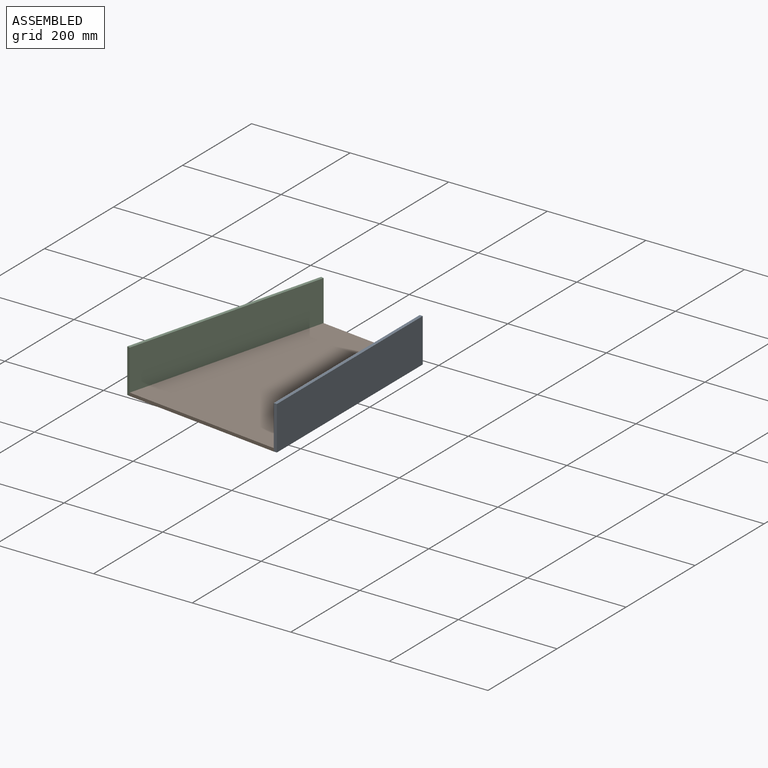
[diagram: assembled view]
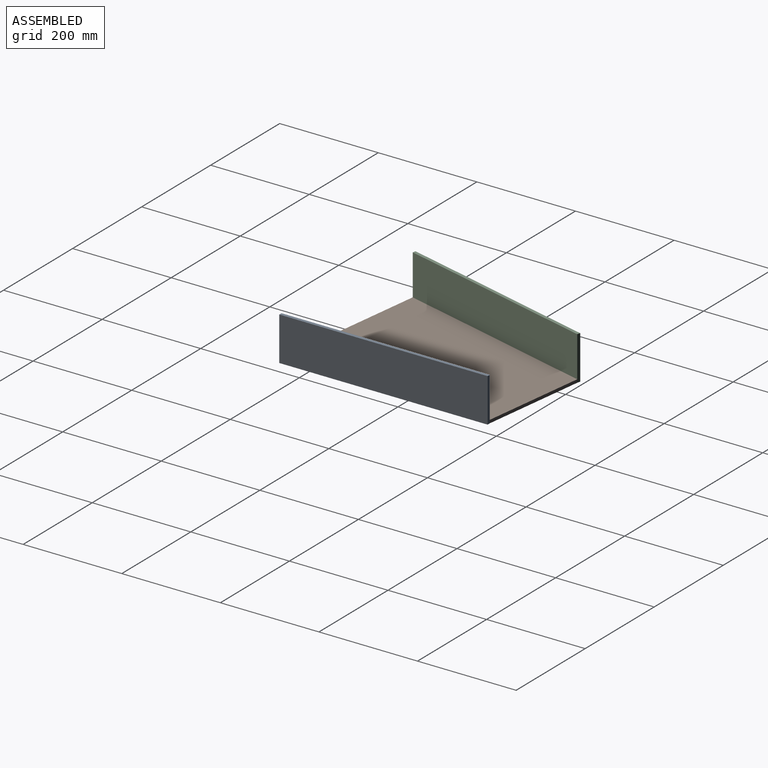
[diagram: assembled view, second angle]
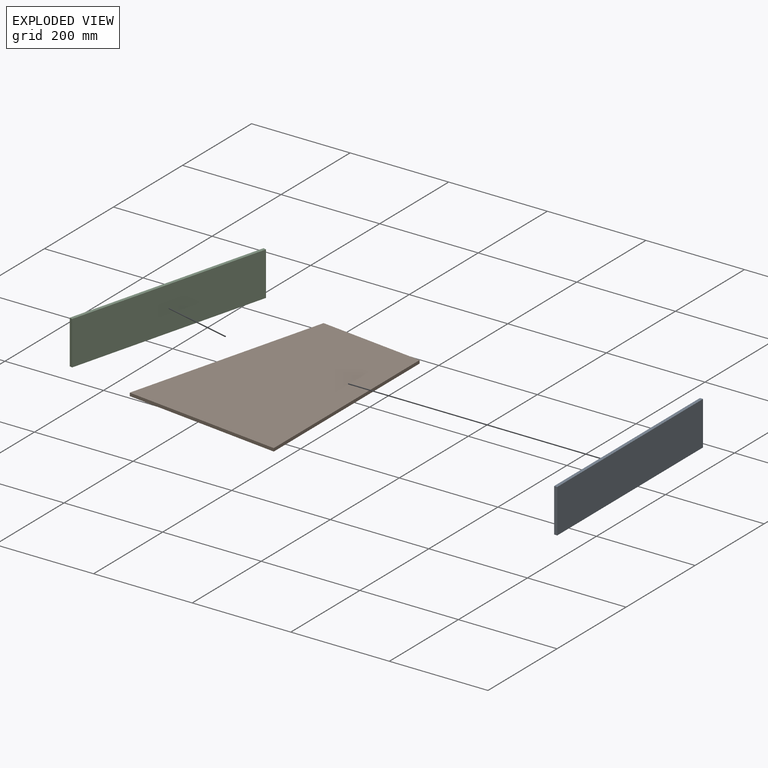
[diagram: exploded view]
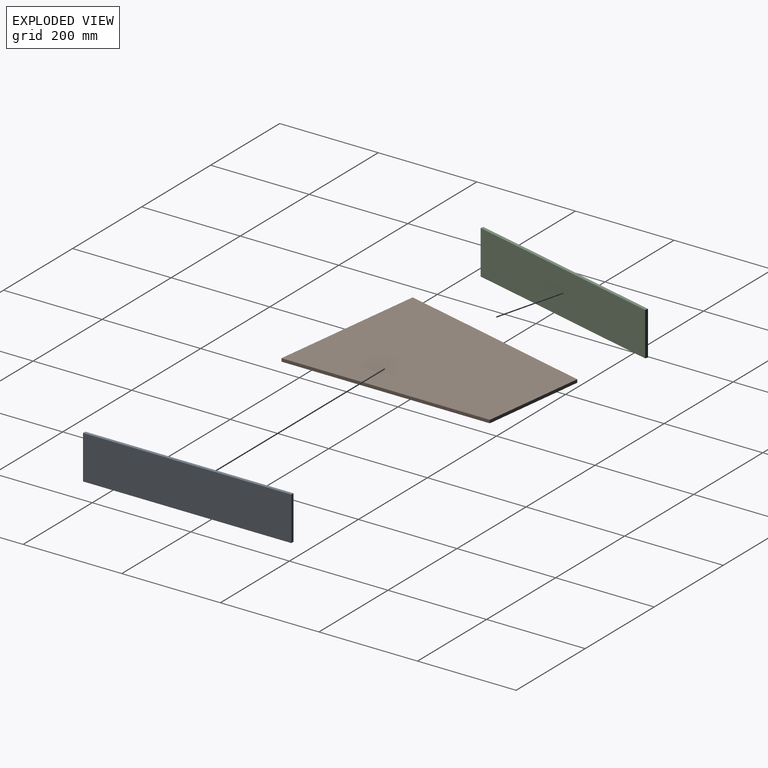
[diagram: exploded view, second angle]
ASSEMBLY  parts=3 mates=2
PART A: 6 faces, bbox 6.4x422.6x88.9 mm
  f0: plane 88.9x6.35mm, normal (0,-1,0), area 564.5mm2, adj f1,f3,f4,f5
  f1: plane 422.55x6.35mm, normal (0,0,-1), area 2683.2mm2, adj f0,f2,f4,f5
  f2: plane 88.9x6.35mm, normal (0,1,0), area 564.5mm2, adj f1,f3,f4,f5
  f3: plane 422.55x6.35mm, normal (0,0,1), area 2683.2mm2, adj f0,f2,f4,f5
  f4: plane 422.55x88.9mm, normal (1,0,0), area 37565.1mm2, adj f0,f1,f2,f3
  f5: plane 422.55x88.9mm, normal (-1,0,0), area 37565.1mm2, adj f0,f1,f2,f3
PART B: 6 faces, bbox 323.9x419.1x6.4 mm
  f0: plane 419.1x53.98mm, normal (-0.99,0.13,0), area 2683.3mm2, adj f1,f3,f4,f5
  f1: plane 323.85x6.35mm, normal (0,-1,0), area 2056.4mm2, adj f0,f2,f4,f5
  f2: plane 419.1x53.98mm, normal (0.99,0.13,0), area 2683.3mm2, adj f1,f3,f4,f5
  f3: plane 215.9x6.35mm, normal (0,1,0), area 1371mm2, adj f0,f2,f4,f5
  f4: plane 419.1x323.85mm, normal (0,0,1), area 113104.6mm2, adj f0,f1,f2,f3
  f5: plane 419.1x323.85mm, normal (0,0,-1), area 113104.6mm2, adj f0,f1,f2,f3
PART C: same geometry as A
PLACE A t=(380.35,-49.88,47.17)mm
PLACE B rot(axis=(0,0,-1),7.3deg) t=(59.15,-8.51,47.17)mm
PLACE C rot(axis=(0,0,-1),14.7deg) t=(53.01,-6.9,47.17)mm
MATE fastened C.f4 <-> B.f0  axis (0.97,-0.25,0) through (59.15,-8.51,47.17)mm
MATE fastened A.f5 <-> B.f2  axis (-1,0,0) through (380.35,-49.88,47.17)mm
